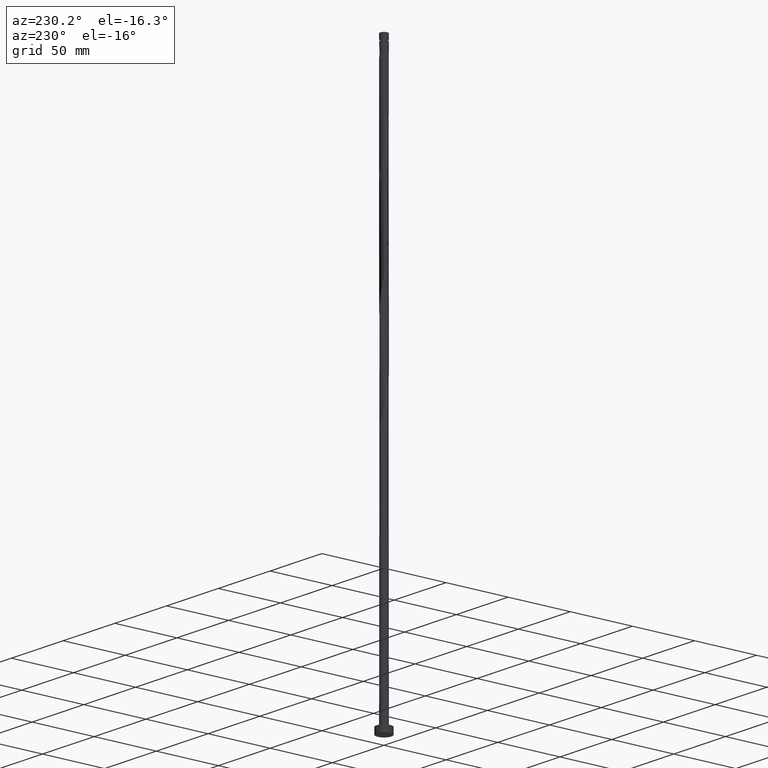
[diagram: clean part render]
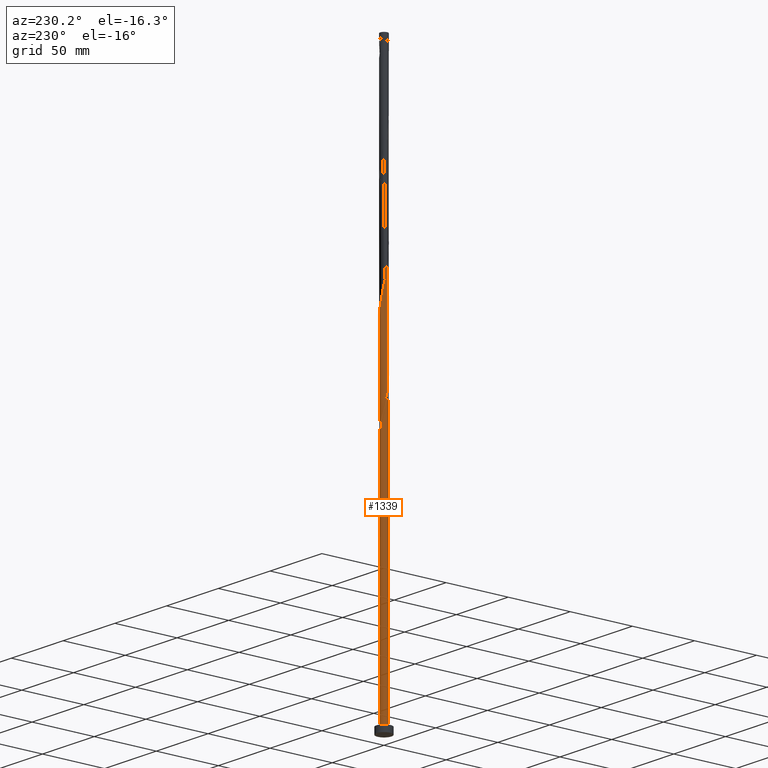
[diagram: same view with one face highlighted and labeled with its STEP entity id]
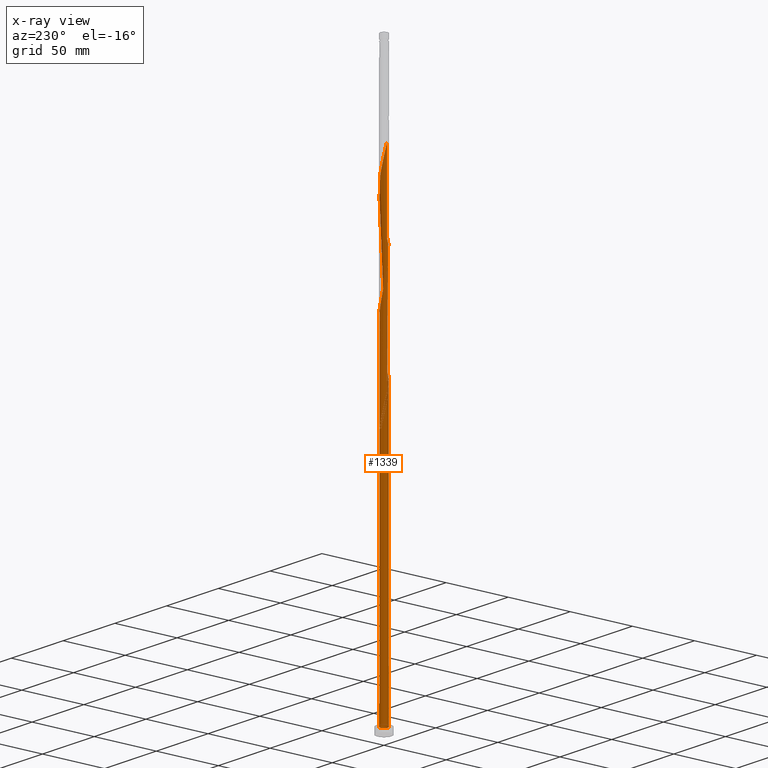
[diagram: x-ray of the same camera — body ghosted, the highlighted face saturated]
A machine part, auxiliary view. The second image highlights one B-rep face of the part: STEP entity #1339.
The next image is the same camera in x-ray: the body ghosted, the highlighted face saturated — about 0% of this face is hidden behind the body in this view.
In plain terms, the highlighted cylindrical surface (bore or boss wall) has radius 3 mm, axis along (-0, -0, -1).
Its self-contained STEP definition (entity closure, byte-faithful):
#14 = CARTESIAN_POINT ( 'NONE',  ( -2.939999999999999503, 0.5969924622639750655, 217.6800381870723697 ) ) ;
#25 = CARTESIAN_POINT ( 'NONE',  ( 0.01195587277277040082, 2.999976176089778068, 199.4508715204056841 ) ) ;
#54 = CARTESIAN_POINT ( 'NONE',  ( 1.159086966227606208, -2.767041272681221908, 241.1175381870723413 ) ) ;
#60 = CARTESIAN_POINT ( 'NONE',  ( 1.921660071883964926, -2.322612231291378837, 328.3571215204055989 ) ) ;
#68 = CARTESIAN_POINT ( 'NONE',  ( -1.410426430302974765, -2.664207629581487602, 312.7321215204056557 ) ) ;
#78 = CARTESIAN_POINT ( 'NONE',  ( -2.767041272681221908, -1.159086966227605764, 303.6175381870724550 ) ) ;
#85 = CARTESIAN_POINT ( 'NONE',  ( 2.998798625402031348, 0.3074277363939123542, 258.0446215204057125 ) ) ;
#91 = CARTESIAN_POINT ( 'NONE',  ( 2.998798625402031348, 0.3074277363939123542, 341.3779548537390269 ) ) ;
#100 = CARTESIAN_POINT ( 'NONE',  ( 1.410426430302976319, 2.664207629581486714, 271.0654548537389701 ) ) ;
#109 = CARTESIAN_POINT ( 'NONE',  ( -2.337855080563639110, 1.903086606305708806, 372.6279548537390269 ) ) ;
#111 = CIRCLE ( 'NONE', #783, 3.000000000000000444 ) ;
#126 = CARTESIAN_POINT ( 'NONE',  ( -1.903086606305709028, -2.337855080563638666, 226.7946215204055989 ) ) ;
#132 = CARTESIAN_POINT ( 'NONE',  ( 0.2835159908483722568, 3.001153726777531450, 359.6071215204056557 ) ) ;
#139 = CARTESIAN_POINT ( 'NONE',  ( -2.112849418798540935, 2.129757576223799465, 209.8675381870723982 ) ) ;
#140 = CARTESIAN_POINT ( 'NONE',  ( -1.159086966227605764, 2.767041272681221908, 366.1175381870723982 ) ) ;
#148 = CARTESIAN_POINT ( 'NONE',  ( -0.5969924622639745104, 2.940000000000004388, 196.8467048537389701 ) ) ;
#151 = CARTESIAN_POINT ( 'NONE',  ( -0.5735401742041624784, -2.944664950138451420, 233.3050381870723697 ) ) ;
#157 = CARTESIAN_POINT ( 'NONE',  ( -2.776191901540428830, 1.136995393931464093, 209.8675381870723697 ) ) ;
#171 = CARTESIAN_POINT ( 'NONE',  ( -3.000000000000000444, 0.000000000000000000, 452.1200000000000045 ) ) ;
#174 = VERTEX_POINT ( 'NONE', #1419 ) ;
#199 = AXIS2_PLACEMENT_3D ( 'NONE', #438, #1965, #751 ) ;
#212 = CARTESIAN_POINT ( 'NONE',  ( 1.159086966227606208, -2.767041272681221908, 324.4508715204057125 ) ) ;
#215 = CARTESIAN_POINT ( 'NONE',  ( 1.431616744321172030, -2.652881170764467278, 242.4196215204057125 ) ) ;
#220 = CARTESIAN_POINT ( 'NONE',  ( 0.01195587277276895059, -2.999976176089781621, 319.2425381870723982 ) ) ;
#222 = CARTESIAN_POINT ( 'NONE',  ( -2.999976176089781621, -0.01195587277276969826, 215.0758715204057125 ) ) ;
#225 = VERTEX_POINT ( 'NONE', #1881 ) ;
#232 = CARTESIAN_POINT ( 'NONE',  ( 0.5735401742041643658, 2.944664950138451420, 274.9717048537389701 ) ) ;
#234 = CARTESIAN_POINT ( 'NONE',  ( -2.998798625402031348, -0.3074277363939112995, 216.3779548537389701 ) ) ;
#238 = ORIENTED_EDGE ( 'NONE', *, *, #403, .F. ) ;
#244 = CARTESIAN_POINT ( 'NONE',  ( 0.2835159908483722568, 3.001153726777531450, 276.2737881870723413 ) ) ;
#246 = CARTESIAN_POINT ( 'NONE',  ( -2.487746701027922391, -1.676638408102568922, 222.8883715204056557 ) ) ;
#250 = EDGE_LOOP ( 'NONE', ( #685, #566, #882, #1563, #334, #1794, #1324, #485, #238 ) ) ;
#255 = CARTESIAN_POINT ( 'NONE',  ( 2.940000000000005276, 0.5969924622639745104, 259.3467048537390269 ) ) ;
#276 = CARTESIAN_POINT ( 'NONE',  ( 0.8635643575599534216, 2.888176173499371391, 357.0029548537389701 ) ) ;
#278 = CARTESIAN_POINT ( 'NONE',  ( -2.322612231291378837, -1.921660071883964926, 224.1904548537389985 ) ) ;
#283 = CARTESIAN_POINT ( 'NONE',  ( 2.322612231291378837, 1.921660071883964926, 349.1904548537390838 ) ) ;
#291 = DIRECTION ( 'NONE',  ( -0.000000000000000000, -0.000000000000000000, -1.000000000000000000 ) ) ;
#300 = CARTESIAN_POINT ( 'NONE',  ( -2.999976176089778068, 0.01195587277277051184, 220.2842048537390269 ) ) ;
#310 = CARTESIAN_POINT ( 'NONE',  ( -2.998798625402026907, 0.3074277363939117436, 218.9821215204056841 ) ) ;
#322 = VERTEX_POINT ( 'NONE', #940 ) ;
#327 = AXIS2_PLACEMENT_3D ( 'NONE', #578, #1041, #1964 ) ;
#334 = ORIENTED_EDGE ( 'NONE', *, *, #1043, .T. ) ;
#365 = CARTESIAN_POINT ( 'NONE',  ( -0.8635643575599528665, -2.888176173499371391, 315.3362881870723413 ) ) ;
#372 = CARTESIAN_POINT ( 'NONE',  ( 2.944664950138451420, -0.5735401742041640327, 337.4717048537390838 ) ) ;
#384 = CARTESIAN_POINT ( 'NONE',  ( 3.001153726777531450, -0.2835159908483721458, 338.7737881870723413 ) ) ;
#394 = CARTESIAN_POINT ( 'NONE',  ( -0.8865571881340386096, 2.881201374597976095, 281.4821215204057694 ) ) ;
#403 = EDGE_CURVE ( 'NONE', #637, #174, #760, .T. ) ;
#404 = CARTESIAN_POINT ( 'NONE',  ( -2.652881170764467278, -1.431616744321172474, 304.9196215204057694 ) ) ;
#413 = CARTESIAN_POINT ( 'NONE',  ( 2.881201374597976539, 0.8865571881340368332, 343.9821215204056557 ) ) ;
#422 = CARTESIAN_POINT ( 'NONE',  ( -2.129757576223802129, 2.112849418798543599, 371.3258715204057125 ) ) ;
#424 = CIRCLE ( 'NONE', #199, 3.000000000000000444 ) ;
#432 = CARTESIAN_POINT ( 'NONE',  ( -3.000000000000005329, 0.2894394447869424458, 380.4138611036593716 ) ) ;
#438 = CARTESIAN_POINT ( 'NONE',  ( 0.000000000000000000, 0.000000000000000000, 5.000000000000000000 ) ) ;
#441 = DIRECTION ( 'NONE',  ( -0.000000000000000000, -0.000000000000000000, -1.000000000000000000 ) ) ;
#442 = CARTESIAN_POINT ( 'NONE',  ( 2.767041272681221908, 1.159086966227606208, 345.2842048537389701 ) ) ;
#443 = EDGE_CURVE ( 'NONE', #1480, #225, #1815, .T. ) ;
#450 = CARTESIAN_POINT ( 'NONE',  ( -2.888176173499371391, 0.8635643575599528665, 211.1696215204056557 ) ) ;
#469 = CARTESIAN_POINT ( 'NONE',  ( -2.881201374597971654, 0.8865571881340383875, 216.3779548537389417 ) ) ;
#478 = EDGE_CURVE ( 'NONE', #1489, #637, #1363, .T. ) ;
#481 = CARTESIAN_POINT ( 'NONE',  ( -3.000000000000000444, 0.000000000000000000, 452.1200000000000045 ) ) ;
#485 = ORIENTED_EDGE ( 'NONE', *, *, #758, .T. ) ;
#501 = DIRECTION ( 'NONE',  ( 0.000000000000000000, -0.000000000000000000, -1.000000000000000000 ) ) ;
#508 = CARTESIAN_POINT ( 'NONE',  ( 2.501031355072563134, -1.656756518304342229, 248.9300381870723413 ) ) ;
#512 = CARTESIAN_POINT ( 'NONE',  ( 2.112849418798544487, 2.129757576223801685, 267.1592048537389701 ) ) ;
#521 = CARTESIAN_POINT ( 'NONE',  ( 2.129757576223801685, -2.112849418798544487, 329.6592048537389701 ) ) ;
#532 = CARTESIAN_POINT ( 'NONE',  ( -1.921660071883964926, 2.322612231291378837, 286.6904548537390269 ) ) ;
#539 = EDGE_CURVE ( 'NONE', #897, #1480, #951, .T. ) ;
#543 = CARTESIAN_POINT ( 'NONE',  ( -2.998798625402031348, -0.3074277363939112995, 299.7112881870723413 ) ) ;
#552 = CARTESIAN_POINT ( 'NONE',  ( -2.664207629581487158, 1.410426430302974765, 291.8987881870723413 ) ) ;
#566 = ORIENTED_EDGE ( 'NONE', *, *, #1617, .F. ) ;
#569 = CARTESIAN_POINT ( 'NONE',  ( 2.888176173499371391, -0.8635643575599529775, 252.8362881870723697 ) ) ;
#571 = CARTESIAN_POINT ( 'NONE',  ( 1.903086606305708361, 2.337855080563639110, 351.7946215204055989 ) ) ;
#578 = CARTESIAN_POINT ( 'NONE',  ( 0.000000000000000000, 0.000000000000000000, 452.1200000000000045 ) ) ;
#581 = CARTESIAN_POINT ( 'NONE',  ( 1.136995393931463427, 2.776191901540428830, 355.7008715204057125 ) ) ;
#584 = CARTESIAN_POINT ( 'NONE',  ( 0.3074277363939111329, -2.998798625402031348, 237.2112881870723413 ) ) ;
#600 = CARTESIAN_POINT ( 'NONE',  ( -2.664207629581487158, 1.410426430302974765, 208.5654548537389701 ) ) ;
#618 = AXIS2_PLACEMENT_3D ( 'NONE', #988, #501, #1128 ) ;
#622 = CARTESIAN_POINT ( 'NONE',  ( -2.322612231291374396, 1.921660071883963150, 211.1696215204056841 ) ) ;
#633 = CARTESIAN_POINT ( 'NONE',  ( -3.000000000000000444, -2.025051232181741774E-15, 220.3369018317358439 ) ) ;
#637 = VERTEX_POINT ( 'NONE', #1887 ) ;
#666 = CARTESIAN_POINT ( 'NONE',  ( 0.8865571881340386096, -2.881201374597976095, 239.8154548537389701 ) ) ;
#672 = CARTESIAN_POINT ( 'NONE',  ( -1.656756518304341785, -2.501031355072563134, 311.4300381870724550 ) ) ;
#681 = CARTESIAN_POINT ( 'NONE',  ( 2.487746701027921947, 1.676638408102569588, 264.5550381870723982 ) ) ;
#685 = ORIENTED_EDGE ( 'NONE', *, *, #478, .F. ) ;
#691 = CARTESIAN_POINT ( 'NONE',  ( 1.676638408102568922, -2.487746701027922835, 327.0550381870723982 ) ) ;
#700 = CARTESIAN_POINT ( 'NONE',  ( -2.940000000000005276, -0.5969924622639750655, 301.0133715204057125 ) ) ;
#709 = CARTESIAN_POINT ( 'NONE',  ( -2.999976176089781621, -0.01195587277276969826, 298.4092048537390838 ) ) ;
#719 = CARTESIAN_POINT ( 'NONE',  ( -2.888176173499371391, 0.8635643575599528665, 377.8362881870725118 ) ) ;
#727 = CARTESIAN_POINT ( 'NONE',  ( 2.112849418798544487, 2.129757576223801685, 350.4925381870723413 ) ) ;
#736 = CARTESIAN_POINT ( 'NONE',  ( -2.112849418798544043, -2.129757576223801685, 225.4925381870723413 ) ) ;
#741 = CARTESIAN_POINT ( 'NONE',  ( 2.944664950138451420, -0.5735401742041640327, 254.1383715204056841 ) ) ;
#745 = DIRECTION ( 'NONE',  ( 1.000000000000000000, 0.000000000000000000, 0.000000000000000000 ) ) ;
#751 = DIRECTION ( 'NONE',  ( 1.000000000000000000, 0.000000000000000000, 0.000000000000000000 ) ) ;
#755 = CARTESIAN_POINT ( 'NONE',  ( 0.000000000000000000, 0.000000000000000000, 5.000000000000000000 ) ) ;
#758 = EDGE_CURVE ( 'NONE', #897, #174, #1483, .T. ) ;
#760 =( BOUNDED_CURVE ( )  B_SPLINE_CURVE ( 2, ( #633, #1223, #300, #310, #14, #469, #1968, #928, #910, #622, #139, #1518, #1674, #1665, #1247, #1854, #1551, #1356, #25, #1822, #1528 ),
 .UNSPECIFIED., .F., .T. ) 
 B_SPLINE_CURVE_WITH_KNOTS ( ( 3, 2, 2, 2, 2, 2, 2, 2, 2, 2, 3 ),
 ( 0.9295286902180872612, 0.9296875000000000000, 0.9375000000000000000, 0.9453125000000000000, 0.9531250000000000000, 0.9609375000000000000, 0.9687500000000000000, 0.9765625000000000000, 0.9843750000000000000, 0.9921875000000000000, 1.000000000000000000 ),
 .UNSPECIFIED. ) 
 CURVE ( )  GEOMETRIC_REPRESENTATION_ITEM ( )  RATIONAL_B_SPLINE_CURVE ( ( 0.9089165573359708761, 0.9090019243628756351, 0.9090909090909674584, 0.9047133878838734544, 0.9090909090909674584, 0.9047133878838734544, 0.9090909090909674584, 0.9047133878838734544, 0.9090909090909674584, 0.9047133878838734544, 0.9090909090909674584, 0.9047133878838734544, 0.9090909090909674584, 0.9047133878838734544, 0.9090909090909674584, 0.9047133878838734544, 0.9090909090909674584, 0.9047133878838734544, 0.9090909090909674584, 0.9047133878838734544, 0.9090909090909674584 ) ) 
 REPRESENTATION_ITEM ( '' )  );
#767 = CARTESIAN_POINT ( 'NONE',  ( -0.2835159908483719238, -3.001153726777531450, 234.6071215204056841 ) ) ;
#775 = CARTESIAN_POINT ( 'NONE',  ( -2.944664950138451420, 0.5735401742041623674, 212.4717048537389985 ) ) ;
#783 = AXIS2_PLACEMENT_3D ( 'NONE', #755, #1055, #745 ) ;
#788 = CARTESIAN_POINT ( 'NONE',  ( -1.159086966227605764, 2.767041272681221908, 199.4508715204056841 ) ) ;
#829 = CARTESIAN_POINT ( 'NONE',  ( 1.921660071883964926, -2.322612231291378837, 245.0237881870723413 ) ) ;
#833 = CARTESIAN_POINT ( 'NONE',  ( -1.136995393931463205, -2.776191901540428830, 314.0342048537390269 ) ) ;
#841 = CARTESIAN_POINT ( 'NONE',  ( -2.322612231291378837, -1.921660071883964926, 307.5237881870723982 ) ) ;
#850 = CARTESIAN_POINT ( 'NONE',  ( 1.656756518304342229, 2.501031355072563134, 269.7633715204057125 ) ) ;
#859 = CARTESIAN_POINT ( 'NONE',  ( -2.129757576223802129, 2.112849418798543599, 287.9925381870725118 ) ) ;
#868 = CARTESIAN_POINT ( 'NONE',  ( -2.487746701027922391, -1.676638408102568922, 306.2217048537389701 ) ) ;
#879 = CARTESIAN_POINT ( 'NONE',  ( -2.776191901540428830, 1.136995393931464093, 376.5342048537389701 ) ) ;
#882 = ORIENTED_EDGE ( 'NONE', *, *, #443, .T. ) ;
#885 = CARTESIAN_POINT ( 'NONE',  ( -0.5969924622639745104, 2.940000000000004388, 196.8467048537389985 ) ) ;
#897 = VERTEX_POINT ( 'NONE', #885 ) ;
#901 = CARTESIAN_POINT ( 'NONE',  ( -0.8865571881340386096, 2.881201374597976095, 198.1487881870723413 ) ) ;
#910 = CARTESIAN_POINT ( 'NONE',  ( -2.487746701027919283, 1.676638408102567368, 212.4717048537389701 ) ) ;
#928 = CARTESIAN_POINT ( 'NONE',  ( -2.652881170764463281, 1.431616744321171586, 213.7737881870723413 ) ) ;
#940 = CARTESIAN_POINT ( 'NONE',  ( 3.000000000000000444, 0.000000000000000000, 5.000000000000000000 ) ) ;
#951 =( BOUNDED_CURVE ( )  B_SPLINE_CURVE ( 2, ( #148, #901, #788, #1393, #1236, #1382, #1073, #1372, #1096, #600, #157, #450, #775, #1842, #1084 ),
 .UNSPECIFIED., .F., .T. ) 
 B_SPLINE_CURVE_WITH_KNOTS ( ( 3, 2, 2, 2, 2, 2, 2, 3 ),
 ( 0.000000000000000000, 0.007812500000000000000, 0.01562500000000000000, 0.02343750000000000000, 0.03125000000000000000, 0.03906250000000000694, 0.04687500000000000000, 0.05452869021808712247 ),
 .UNSPECIFIED. ) 
 CURVE ( )  GEOMETRIC_REPRESENTATION_ITEM ( )  RATIONAL_B_SPLINE_CURVE ( ( 0.9090909090909731205, 0.9047133878838791166, 0.9090909090909731205, 0.9047133878838791166, 0.9090909090909731205, 0.9047133878838791166, 0.9090909090909731205, 0.9047133878838791166, 0.9090909090909731205, 0.9047133878838791166, 0.9090909090909731205, 0.9047133878838791166, 0.9090909090909731205, 0.9048023726119709398, 0.9089165573359764272 ) ) 
 REPRESENTATION_ITEM ( '' )  );
#973 = CARTESIAN_POINT ( 'NONE',  ( -0.01195587277276863487, 2.999976176089782065, 277.5758715204057125 ) ) ;
#980 = CARTESIAN_POINT ( 'NONE',  ( 2.664207629581487158, -1.410426430302976319, 333.5654548537390838 ) ) ;
#984 = CARTESIAN_POINT ( 'NONE',  ( 1.676638408102568922, -2.487746701027922835, 243.7217048537390269 ) ) ;
#988 = CARTESIAN_POINT ( 'NONE',  ( 0.000000000000000000, 0.000000000000000000, 196.8467048537390554 ) ) ;
#992 = CARTESIAN_POINT ( 'NONE',  ( 2.501031355072563134, -1.656756518304342229, 332.2633715204056557 ) ) ;
#1004 = CARTESIAN_POINT ( 'NONE',  ( 0.8865571881340386096, -2.881201374597976095, 323.1487881870725118 ) ) ;
#1015 = CARTESIAN_POINT ( 'NONE',  ( -1.159086966227605764, 2.767041272681221908, 282.7842048537390838 ) ) ;
#1026 = CARTESIAN_POINT ( 'NONE',  ( -2.501031355072563134, 1.656756518304341563, 373.9300381870722845 ) ) ;
#1028 = CARTESIAN_POINT ( 'NONE',  ( 0.01195587277276895059, -2.999976176089781621, 235.9092048537390269 ) ) ;
#1036 = CARTESIAN_POINT ( 'NONE',  ( -3.000000000000005329, -1.324251173920955977E-15, 381.6898412090755528 ) ) ;
#1041 = DIRECTION ( 'NONE',  ( -0.000000000000000000, -0.000000000000000000, -1.000000000000000000 ) ) ;
#1043 = EDGE_CURVE ( 'NONE', #322, #225, #424, .T. ) ;
#1055 = DIRECTION ( 'NONE',  ( 0.000000000000000000, 0.000000000000000000, 1.000000000000000000 ) ) ;
#1058 = CARTESIAN_POINT ( 'NONE',  ( -1.410426430302974765, -2.664207629581487602, 229.3987881870723697 ) ) ;
#1067 = CARTESIAN_POINT ( 'NONE',  ( 1.410426430302976319, 2.664207629581486714, 354.3987881870722845 ) ) ;
#1073 = CARTESIAN_POINT ( 'NONE',  ( -2.129757576223802129, 2.112849418798543599, 204.6592048537389701 ) ) ;
#1084 = CARTESIAN_POINT ( 'NONE',  ( -3.000000000000004885, 2.856319386395306353E-15, 215.0231745424088103 ) ) ;
#1096 = CARTESIAN_POINT ( 'NONE',  ( -2.501031355072563134, 1.656756518304341563, 207.2633715204056841 ) ) ;
#1128 = DIRECTION ( 'NONE',  ( -1.000000000000000000, 0.000000000000000000, 0.000000000000000000 ) ) ;
#1131 = CARTESIAN_POINT ( 'NONE',  ( -2.337855080563639110, 1.903086606305708806, 289.2946215204056557 ) ) ;
#1136 = CARTESIAN_POINT ( 'NONE',  ( 2.776191901540428830, -1.136995393931463427, 251.5342048537389985 ) ) ;
#1140 = CARTESIAN_POINT ( 'NONE',  ( 2.776191901540428830, -1.136995393931463427, 334.8675381870723982 ) ) ;
#1151 = CARTESIAN_POINT ( 'NONE',  ( -2.881201374597976095, -0.8865571881340386096, 302.3154548537390269 ) ) ;
#1162 = CARTESIAN_POINT ( 'NONE',  ( 0.5969924622639749545, -2.940000000000005276, 321.8467048537391406 ) ) ;
#1164 = CARTESIAN_POINT ( 'NONE',  ( -3.000000000000004441, -0.005977960122779922558, 215.0495280969261103 ) ) ;
#1171 = CARTESIAN_POINT ( 'NONE',  ( 1.431616744321172030, -2.652881170764467278, 325.7529548537389132 ) ) ;
#1174 = CARTESIAN_POINT ( 'NONE',  ( 0.5969924622639749545, -2.940000000000005276, 238.5133715204056273 ) ) ;
#1188 = CARTESIAN_POINT ( 'NONE',  ( 3.001153726777531450, -0.2835159908483721458, 255.4404548537390554 ) ) ;
#1191 = CARTESIAN_POINT ( 'NONE',  ( 1.656756518304342229, 2.501031355072563134, 353.0967048537390269 ) ) ;
#1198 = CARTESIAN_POINT ( 'NONE',  ( -2.664207629581487158, 1.410426430302974765, 375.2321215204057694 ) ) ;
#1208 = CARTESIAN_POINT ( 'NONE',  ( 2.940000000000005276, 0.5969924622639745104, 342.6800381870723413 ) ) ;
#1223 = CARTESIAN_POINT ( 'NONE',  ( -2.999999999999999556, 0.005977960122785968070, 220.3105482772185724 ) ) ;
#1234 = CARTESIAN_POINT ( 'NONE',  ( -3.000000000000005329, -1.324251173920955977E-15, 381.6898412090755528 ) ) ;
#1236 = CARTESIAN_POINT ( 'NONE',  ( -1.676638408102568922, 2.487746701027922391, 202.0550381870723697 ) ) ;
#1247 = CARTESIAN_POINT ( 'NONE',  ( -1.136995393931461873, 2.776191901540426610, 204.6592048537389985 ) ) ;
#1284 = CARTESIAN_POINT ( 'NONE',  ( -2.501031355072563134, 1.656756518304341563, 290.5967048537390838 ) ) ;
#1288 = CARTESIAN_POINT ( 'NONE',  ( 2.664207629581487158, -1.410426430302976319, 250.2321215204056841 ) ) ;
#1292 = CARTESIAN_POINT ( 'NONE',  ( 0.8635643575599534216, 2.888176173499371391, 273.6696215204056557 ) ) ;
#1303 = CARTESIAN_POINT ( 'NONE',  ( -0.2835159908483719238, -3.001153726777531450, 317.9404548537389701 ) ) ;
#1310 = CARTESIAN_POINT ( 'NONE',  ( 2.767041272681221908, 1.159086966227606208, 261.9508715204057125 ) ) ;
#1312 = CARTESIAN_POINT ( 'NONE',  ( -2.767041272681221908, -1.159086966227605764, 220.2842048537390554 ) ) ;
#1319 = CARTESIAN_POINT ( 'NONE',  ( 1.136995393931463427, 2.776191901540428830, 272.3675381870724550 ) ) ;
#1324 = ORIENTED_EDGE ( 'NONE', *, *, #539, .F. ) ;
#1330 = CARTESIAN_POINT ( 'NONE',  ( 0.5735401742041643658, 2.944664950138451420, 358.3050381870723413 ) ) ;
#1337 = CARTESIAN_POINT ( 'NONE',  ( -0.3074277363939121877, 2.998798625402031792, 362.2112881870724550 ) ) ;
#1339 = ADVANCED_FACE ( 'NONE', ( #1344 ), #1955, .T. ) ;
#1344 = FACE_OUTER_BOUND ( 'NONE', #250, .T. ) ;
#1345 = CARTESIAN_POINT ( 'NONE',  ( 2.999976176089782065, 0.01195587277276874069, 256.7425381870723982 ) ) ;
#1356 = CARTESIAN_POINT ( 'NONE',  ( -0.2835159908483709801, 3.001153726777527897, 200.7529548537389985 ) ) ;
#1357 = CARTESIAN_POINT ( 'NONE',  ( 2.652881170764467278, 1.431616744321172030, 346.5862881870723982 ) ) ;
#1363 = LINE ( 'NONE', #481, #1954 ) ;
#1364 = CARTESIAN_POINT ( 'NONE',  ( -2.944664950138451420, 0.5735401742041623674, 379.1383715204057125 ) ) ;
#1366 = CARTESIAN_POINT ( 'NONE',  ( -1.136995393931463205, -2.776191901540428830, 230.7008715204056273 ) ) ;
#1372 = CARTESIAN_POINT ( 'NONE',  ( -2.337855080563639110, 1.903086606305708806, 205.9612881870723413 ) ) ;
#1382 = CARTESIAN_POINT ( 'NONE',  ( -1.921660071883964926, 2.322612231291378837, 203.3571215204056273 ) ) ;
#1393 = CARTESIAN_POINT ( 'NONE',  ( -1.431616744321173140, 2.652881170764466834, 200.7529548537389985 ) ) ;
#1414 = CARTESIAN_POINT ( 'NONE',  ( 2.337855080563638666, -1.903086606305709028, 247.6279548537389132 ) ) ;
#1419 = CARTESIAN_POINT ( 'NONE',  ( 0.5969924622639753986, 2.939999999999999503, 196.8467048537389985 ) ) ;
#1436 = CARTESIAN_POINT ( 'NONE',  ( 2.652881170764467278, 1.431616744321172030, 263.2529548537389701 ) ) ;
#1445 = CARTESIAN_POINT ( 'NONE',  ( -2.888176173499371391, 0.8635643575599528665, 294.5029548537390838 ) ) ;
#1450 =( BOUNDED_CURVE ( )  B_SPLINE_CURVE ( 2, ( #1592, #1164, #222, #234, #1767, #1913, #1312, #1614, #246, #278, #736, #126, #1521, #1058, #1366, #1981, #151, #767, #1028, #584, #1174, #666, #54, #215, #984, #829, #1865, #1414, #508, #1288, #1136, #569, #741, #1188, #1345, #85, #255, #1765, #1310, #1436, #681, #1612, #512, #1890, #850, #100, #1319, #1292, #232, #244, #973, #1779, #1922, #394, #1015, #1911, #1901, #532, #859, #1131, #1284, #552, #1590, #1445, #1735, #1466, #709, #543, #700, #1151, #78, #404, #868, #841, #1623, #1582, #672, #68, #833, #365, #1930, #1303, #220, #1601, #1162, #1004, #212, #1171, #691, #60, #521, #1753, #992, #980, #1140, #1742, #372, #384, #1457, #91, #1208, #413, #442, #1357, #1949, #283, #727, #571, #1191, #1067, #581, #276, #1330, #132, #1511, #1337, #1650, #1790, #140, #1476, #1800, #1807, #422, #109, #1026, #1198, #879, #719, #1364, #432, #1036 ),
 .UNSPECIFIED., .F., .T. ) 
 B_SPLINE_CURVE_WITH_KNOTS ( ( 3, 2, 2, 2, 2, 2, 2, 2, 2, 2, 2, 2, 2, 2, 2, 2, 2, 2, 2, 2, 2, 2, 2, 2, 2, 2, 2, 2, 2, 2, 2, 2, 2, 2, 2, 2, 2, 2, 2, 2, 2, 2, 2, 2, 2, 2, 2, 2, 2, 2, 2, 2, 2, 2, 2, 2, 2, 2, 2, 2, 2, 2, 2, 2, 2, 3 ),
 ( 0.05452869021808712247, 0.05468750000000000000, 0.06250000000000000000, 0.07031250000000000000, 0.07812500000000000000, 0.08593750000000000000, 0.09375000000000000000, 0.1015625000000000000, 0.1093750000000000000, 0.1171875000000000000, 0.1250000000000000000, 0.1328125000000000000, 0.1406250000000000000, 0.1484375000000000000, 0.1562500000000000000, 0.1640625000000000000, 0.1718750000000000000, 0.1796875000000000000, 0.1875000000000000000, 0.1953125000000000000, 0.2031250000000000000, 0.2109375000000000000, 0.2187500000000000000, 0.2265625000000000000, 0.2343750000000000000, 0.2421875000000000000, 0.2500000000000000000, 0.2578125000000000000, 0.2656250000000000000, 0.2734375000000000000, 0.2812500000000000000, 0.2890625000000000000, 0.2968750000000000000, 0.3046875000000000000, 0.3125000000000000000, 0.3203125000000000000, 0.3281250000000000000, 0.3359375000000000000, 0.3437500000000000000, 0.3515625000000000000, 0.3593750000000000000, 0.3671875000000000000, 0.3750000000000000000, 0.3828125000000000000, 0.3906250000000000000, 0.3984375000000000000, 0.4062500000000000000, 0.4140625000000000000, 0.4218750000000000000, 0.4296875000000000000, 0.4375000000000000000, 0.4453125000000000000, 0.4531250000000000000, 0.4609375000000000000, 0.4687500000000000000, 0.4765625000000000000, 0.4843750000000000000, 0.4921875000000000000, 0.5000000000000000000, 0.5078125000000000000, 0.5156250000000000000, 0.5234375000000000000, 0.5312500000000000000, 0.5390625000000000000, 0.5468750000000000000, 0.5545286902180872612 ),
 .UNSPECIFIED. ) 
 CURVE ( )  GEOMETRIC_REPRESENTATION_ITEM ( )  RATIONAL_B_SPLINE_CURVE ( ( 0.9089165573359764272, 0.9090019243628812973, 0.9090909090909731205, 0.9047133878838791166, 0.9090909090909731205, 0.9047133878838791166, 0.9090909090909731205, 0.9047133878838791166, 0.9090909090909731205, 0.9047133878838791166, 0.9090909090909731205, 0.9047133878838791166, 0.9090909090909731205, 0.9047133878838791166, 0.9090909090909731205, 0.9047133878838791166, 0.9090909090909731205, 0.9047133878838791166, 0.9090909090909731205, 0.9047133878838791166, 0.9090909090909731205, 0.9047133878838791166, 0.9090909090909731205, 0.9047133878838791166, 0.9090909090909731205, 0.9047133878838791166, 0.9090909090909731205, 0.9047133878838791166, 0.9090909090909731205, 0.9047133878838791166, 0.9090909090909731205, 0.9047133878838791166, 0.9090909090909731205, 0.9047133878838791166, 0.9090909090909731205, 0.9047133878838791166, 0.9090909090909731205, 0.9047133878838791166, 0.9090909090909731205, 0.9047133878838791166, 0.9090909090909731205, 0.9047133878838791166, 0.9090909090909731205, 0.9047133878838791166, 0.9090909090909731205, 0.9047133878838791166, 0.9090909090909731205, 0.9047133878838791166, 0.9090909090909731205, 0.9047133878838791166, 0.9090909090909731205, 0.9047133878838791166, 0.9090909090909731205, 0.9047133878838791166, 0.9090909090909731205, 0.9047133878838791166, 0.9090909090909731205, 0.9047133878838791166, 0.9090909090909731205, 0.9047133878838791166, 0.9090909090909731205, 0.9047133878838791166, 0.9090909090909731205, 0.9047133878838791166, 0.9090909090909731205, 0.9047133878838791166, 0.9090909090909731205, 0.9047133878838791166, 0.9090909090909731205, 0.9047133878838791166, 0.9090909090909731205, 0.9047133878838791166, 0.9090909090909731205, 0.9047133878838791166, 0.9090909090909731205, 0.9047133878838791166, 0.9090909090909731205, 0.9047133878838791166, 0.9090909090909731205, 0.9047133878838791166, 0.9090909090909731205, 0.9047133878838791166, 0.9090909090909731205, 0.9047133878838791166, 0.9090909090909731205, 0.9047133878838791166, 0.9090909090909731205, 0.9047133878838791166, 0.9090909090909731205, 0.9047133878838791166, 0.9090909090909731205, 0.9047133878838791166, 0.9090909090909731205, 0.9047133878838791166, 0.9090909090909731205, 0.9047133878838791166, 0.9090909090909731205, 0.9047133878838791166, 0.9090909090909731205, 0.9047133878838791166, 0.9090909090909731205, 0.9047133878838791166, 0.9090909090909731205, 0.9047133878838791166, 0.9090909090909731205, 0.9047133878838791166, 0.9090909090909731205, 0.9047133878838791166, 0.9090909090909731205, 0.9047133878838791166, 0.9090909090909731205, 0.9047133878838791166, 0.9090909090909731205, 0.9047133878838791166, 0.9090909090909731205, 0.9047133878838791166, 0.9090909090909731205, 0.9047133878838791166, 0.9090909090909731205, 0.9047133878838791166, 0.9090909090909731205, 0.9047133878838791166, 0.9090909090909731205, 0.9047133878838791166, 0.9090909090909731205, 0.9047133878838791166, 0.9090909090909731205, 0.9047133878838791166, 0.9090909090909731205, 0.9048023726119709398, 0.9089165573359765382 ) ) 
 REPRESENTATION_ITEM ( '' )  );
#1457 = CARTESIAN_POINT ( 'NONE',  ( 2.999976176089782065, 0.01195587277276874069, 340.0758715204057694 ) ) ;
#1466 = CARTESIAN_POINT ( 'NONE',  ( -3.001153726777531450, 0.2835159908483718127, 297.1071215204056557 ) ) ;
#1476 = CARTESIAN_POINT ( 'NONE',  ( -1.431616744321173140, 2.652881170764466834, 367.4196215204055420 ) ) ;
#1480 = VERTEX_POINT ( 'NONE', #1685 ) ;
#1483 = CIRCLE ( 'NONE', #618, 3.000000000000000444 ) ;
#1489 = VERTEX_POINT ( 'NONE', #1234 ) ;
#1511 = CARTESIAN_POINT ( 'NONE',  ( -0.01195587277276863487, 2.999976176089782065, 360.9092048537389701 ) ) ;
#1518 = CARTESIAN_POINT ( 'NONE',  ( -1.903086606305705031, 2.337855080563636889, 208.5654548537389701 ) ) ;
#1521 = CARTESIAN_POINT ( 'NONE',  ( -1.656756518304341785, -2.501031355072563134, 228.0967048537389985 ) ) ;
#1528 = CARTESIAN_POINT ( 'NONE',  ( 0.5969924622639753986, 2.939999999999999503, 196.8467048537389985 ) ) ;
#1551 = CARTESIAN_POINT ( 'NONE',  ( -0.5735401742041612572, 2.944664950138446535, 202.0550381870723413 ) ) ;
#1563 = ORIENTED_EDGE ( 'NONE', *, *, #1714, .T. ) ;
#1566 = VECTOR ( 'NONE', #441, 1000.000000000000000 ) ;
#1582 = CARTESIAN_POINT ( 'NONE',  ( -1.903086606305709028, -2.337855080563638666, 310.1279548537389701 ) ) ;
#1590 = CARTESIAN_POINT ( 'NONE',  ( -2.776191901540428830, 1.136995393931464093, 293.2008715204056557 ) ) ;
#1592 = CARTESIAN_POINT ( 'NONE',  ( -3.000000000000004885, 2.856319386395306353E-15, 215.0231745424088103 ) ) ;
#1601 = CARTESIAN_POINT ( 'NONE',  ( 0.3074277363939111329, -2.998798625402031348, 320.5446215204057125 ) ) ;
#1612 = CARTESIAN_POINT ( 'NONE',  ( 2.322612231291378837, 1.921660071883964926, 265.8571215204056557 ) ) ;
#1614 = CARTESIAN_POINT ( 'NONE',  ( -2.652881170764467278, -1.431616744321172474, 221.5862881870723413 ) ) ;
#1617 = EDGE_CURVE ( 'NONE', #1480, #1489, #1450, .T. ) ;
#1623 = CARTESIAN_POINT ( 'NONE',  ( -2.112849418798544043, -2.129757576223801685, 308.8258715204057125 ) ) ;
#1650 = CARTESIAN_POINT ( 'NONE',  ( -0.5969924622639745104, 2.940000000000005276, 363.5133715204056557 ) ) ;
#1665 = CARTESIAN_POINT ( 'NONE',  ( -1.410426430302972545, 2.664207629581484049, 205.9612881870723697 ) ) ;
#1674 = CARTESIAN_POINT ( 'NONE',  ( -1.656756518304339121, 2.501031355072560025, 207.2633715204057125 ) ) ;
#1685 = CARTESIAN_POINT ( 'NONE',  ( -3.000000000000004885, 2.856319386395306353E-15, 215.0231745424088388 ) ) ;
#1714 = EDGE_CURVE ( 'NONE', #225, #322, #111, .T. ) ;
#1735 = CARTESIAN_POINT ( 'NONE',  ( -2.944664950138451420, 0.5735401742041623674, 295.8050381870723982 ) ) ;
#1742 = CARTESIAN_POINT ( 'NONE',  ( 2.888176173499371391, -0.8635643575599529775, 336.1696215204057125 ) ) ;
#1753 = CARTESIAN_POINT ( 'NONE',  ( 2.337855080563638666, -1.903086606305709028, 330.9612881870723982 ) ) ;
#1765 = CARTESIAN_POINT ( 'NONE',  ( 2.881201374597976539, 0.8865571881340368332, 260.6487881870723982 ) ) ;
#1767 = CARTESIAN_POINT ( 'NONE',  ( -2.940000000000005276, -0.5969924622639750655, 217.6800381870723413 ) ) ;
#1779 = CARTESIAN_POINT ( 'NONE',  ( -0.3074277363939121877, 2.998798625402031792, 278.8779548537389701 ) ) ;
#1790 = CARTESIAN_POINT ( 'NONE',  ( -0.8865571881340386096, 2.881201374597976095, 364.8154548537390838 ) ) ;
#1794 = ORIENTED_EDGE ( 'NONE', *, *, #443, .F. ) ;
#1800 = CARTESIAN_POINT ( 'NONE',  ( -1.676638408102568922, 2.487746701027922391, 368.7217048537390838 ) ) ;
#1807 = CARTESIAN_POINT ( 'NONE',  ( -1.921660071883964926, 2.322612231291378837, 370.0237881870723413 ) ) ;
#1815 = LINE ( 'NONE', #171, #1566 ) ;
#1822 = CARTESIAN_POINT ( 'NONE',  ( 0.3074277363939118546, 2.998798625402026907, 198.1487881870723129 ) ) ;
#1842 = CARTESIAN_POINT ( 'NONE',  ( -3.000000000000004441, 0.2894394447869475528, 213.7471944369927996 ) ) ;
#1854 = CARTESIAN_POINT ( 'NONE',  ( -0.8635643575599506461, 2.888176173499367838, 203.3571215204056841 ) ) ;
#1865 = CARTESIAN_POINT ( 'NONE',  ( 2.129757576223801685, -2.112849418798544487, 246.3258715204056841 ) ) ;
#1881 = CARTESIAN_POINT ( 'NONE',  ( -3.000000000000000444, 0.000000000000000000, 5.000000000000000000 ) ) ;
#1887 = CARTESIAN_POINT ( 'NONE',  ( -3.000000000000000444, -2.025051232181741774E-15, 220.3369018317358439 ) ) ;
#1890 = CARTESIAN_POINT ( 'NONE',  ( 1.903086606305708361, 2.337855080563639110, 268.4612881870723982 ) ) ;
#1901 = CARTESIAN_POINT ( 'NONE',  ( -1.676638408102568922, 2.487746701027922391, 285.3883715204058262 ) ) ;
#1911 = CARTESIAN_POINT ( 'NONE',  ( -1.431616744321173140, 2.652881170764466834, 284.0862881870723413 ) ) ;
#1913 = CARTESIAN_POINT ( 'NONE',  ( -2.881201374597976095, -0.8865571881340386096, 218.9821215204056841 ) ) ;
#1922 = CARTESIAN_POINT ( 'NONE',  ( -0.5969924622639745104, 2.940000000000005276, 280.1800381870724550 ) ) ;
#1930 = CARTESIAN_POINT ( 'NONE',  ( -0.5735401742041624784, -2.944664950138451420, 316.6383715204056557 ) ) ;
#1949 = CARTESIAN_POINT ( 'NONE',  ( 2.487746701027921947, 1.676638408102569588, 347.8883715204058262 ) ) ;
#1954 = VECTOR ( 'NONE', #291, 1000.000000000000000 ) ;
#1955 = CYLINDRICAL_SURFACE ( 'NONE', #327, 3.000000000000000444 ) ;
#1964 = DIRECTION ( 'NONE',  ( -1.000000000000000000, 0.000000000000000000, 0.000000000000000000 ) ) ;
#1965 = DIRECTION ( 'NONE',  ( 0.000000000000000000, 0.000000000000000000, 1.000000000000000000 ) ) ;
#1968 = CARTESIAN_POINT ( 'NONE',  ( -2.767041272681217023, 1.159086966227605098, 215.0758715204057410 ) ) ;
#1981 = CARTESIAN_POINT ( 'NONE',  ( -0.8635643575599528665, -2.888176173499371391, 232.0029548537389132 ) ) ;